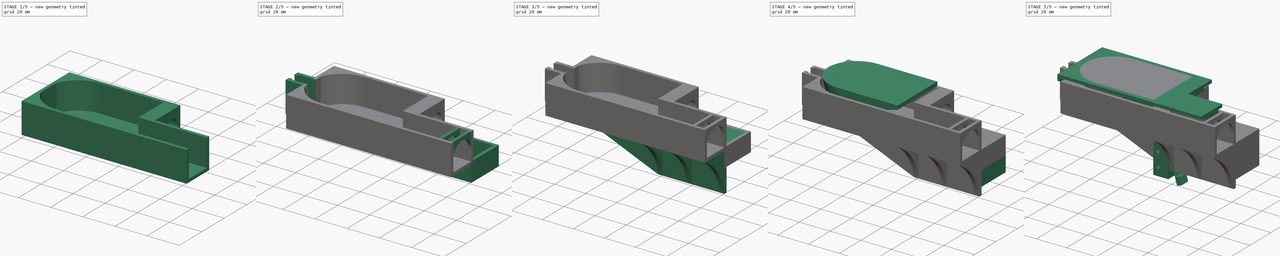
[diagram: build sequence overview — one tinted view per stage of 5, left to right]
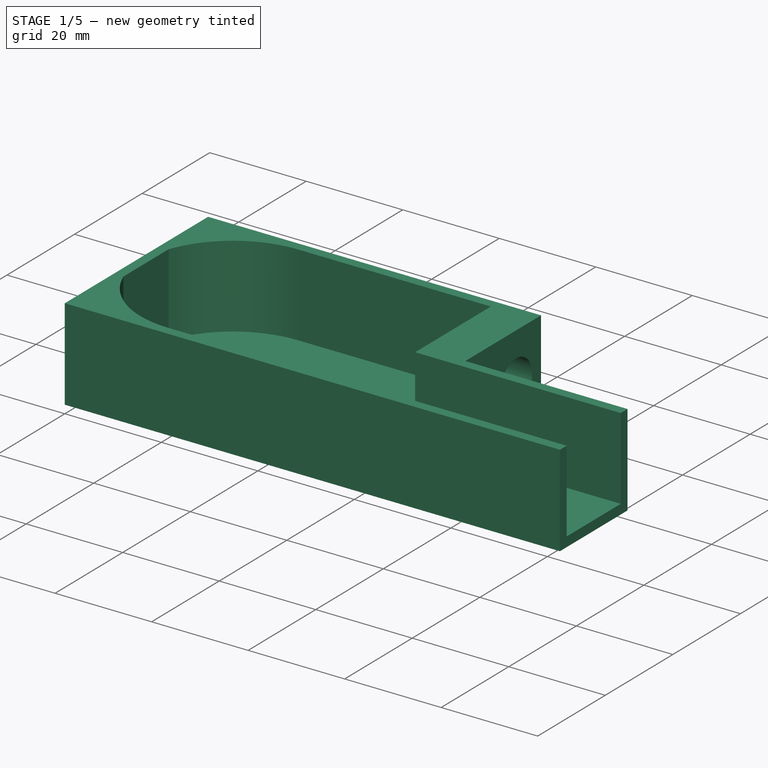
[diagram: stage 1 of 5 — iso view after this stage's code; geometry added in this stage tinted green]
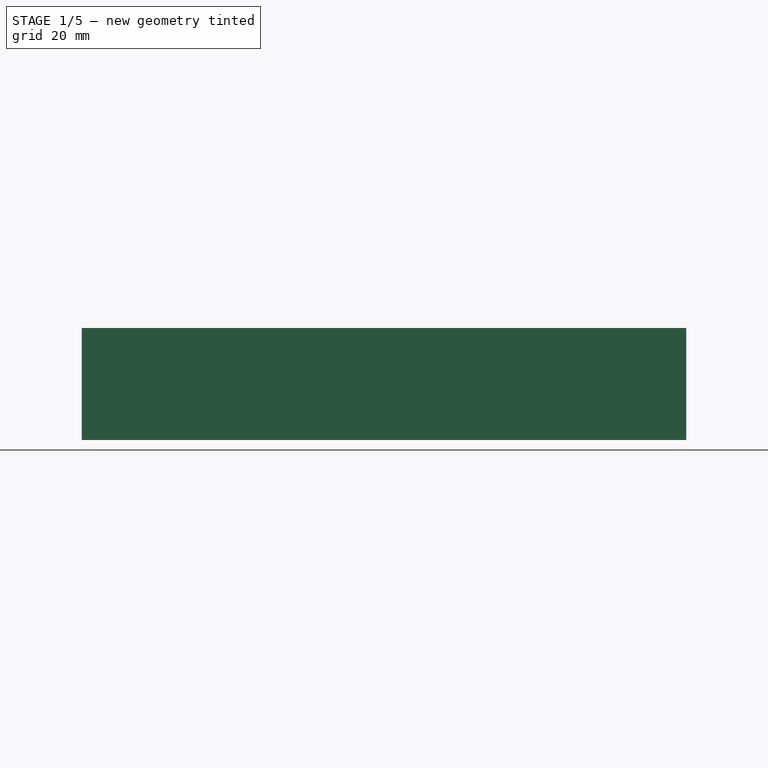
[diagram: stage 1 of 5 — front view after this stage's code; geometry added in this stage tinted green]
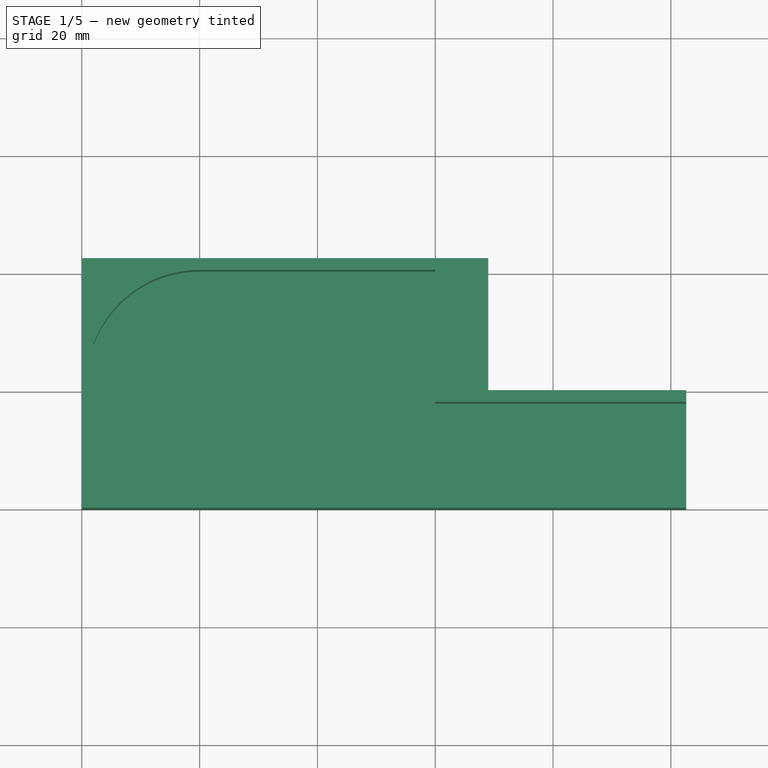
[diagram: stage 1 of 5 — top view after this stage's code; geometry added in this stage tinted green]
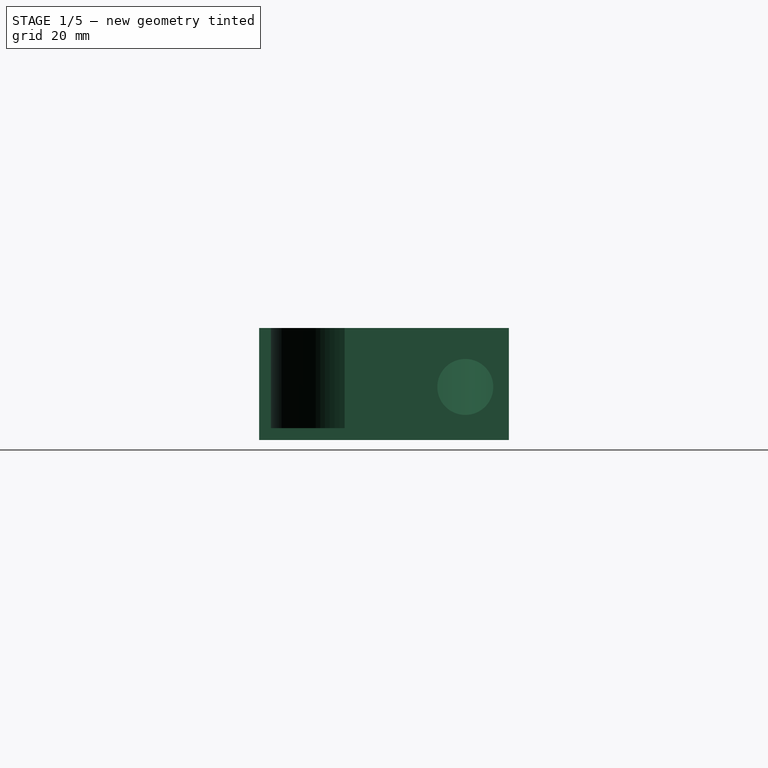
[diagram: stage 1 of 5 — right view after this stage's code; geometry added in this stage tinted green]
FCSTD DOCUMENT  (FreeCAD 1.0R39109 (Git))
Label: CapGuide
License: All rights reserved
LicenseURL: https://en.wikipedia.org/wiki/All_rights_reserved
objects: Sketcher::SketchObject×24, PartDesign::Pad×21, PartDesign::Body×6, PartDesign::Pocket×3, PartDesign::Boolean×2, PartDesign::AdditiveBox×1
note: 133 computed .brp shape members not serialized (recipe doc carries the construction recipe); baked Part::Feature solids carry a one-line shape summary decoded from their .brp

FEATURE [Sketcher::SketchObject] Sketch030
  ArcFitTolerance = 0
  AttachmentOffset = pos=(0,0,12) rot=(0,0,1;0rad)
  AttachmentSupport = -> [XY_Plane004]
  FullyConstrained = true
  MakeInternals = false
  MapMode = 5
  Placement = pos=(0,0,12) rot=(0,0,1;0rad)
  sketch-geometry (6):
    g0: LineSegment StartX=-60 StartY=22.4 StartZ=0 EndX=0 EndY=22.4 EndZ=0
    g1: LineSegment StartX=42.6 StartY=0 StartZ=0 EndX=42.6 EndY=-20 EndZ=0
    g2: LineSegment StartX=42.6 StartY=-20 StartZ=0 EndX=-60 EndY=-20 EndZ=0
    g3: LineSegment StartX=-60 StartY=-20 StartZ=0 EndX=-60 EndY=22.4 EndZ=0
    g4: LineSegment StartX=0 StartY=22.4 StartZ=0 EndX=0 EndY=0 EndZ=0
    g5: LineSegment StartX=0 StartY=0 StartZ=0 EndX=42.6 EndY=0 EndZ=0
  constraints (18):
    c: Coincident(g1,g2)
    c: Coincident(g3,g0)
    c: Horizontal(g0)
    c: Horizontal(g2)
    c: Vertical(g1)
    c: Vertical(g3)
    c: Coincident(g2,g3)
    c: DistanceY(g0) = 22.4
    c: DistanceX(g2) = -60
    c: DistanceY(g2) = -20
    c: DistanceX(g-1,g1) = 42.6
    c: DistanceX(g0,g-1) = 0
    c: Coincident(g0,g4)
    c: Coincident(g4,g5)
    c: Coincident(g5,g1)
    c: Horizontal(g5)
    c: Vertical(g4)
    c: DistanceY(g1,g-1) = 0
FEATURE [PartDesign::Pad] Pad029
  Direction = (0,0,1)
  Length = 2
  Length2 = 10
  Profile = -> Sketch030
  ReferenceAxis = -> Sketch030 [N_Axis]
  Reversed = true
  Suppressed = false
  Type = 0
FEATURE [PartDesign::Pad] Pad024
  BaseFeature = -> Pad029
  Direction = (1,0,0)
  Length = 9
  Length2 = 10
  Profile = -> Sketch026
  ReferenceAxis = -> Sketch026 [N_Axis]
  Suppressed = false
  Type = 0
FEATURE [PartDesign::Pad] Pad025
  BaseFeature = -> Pad024
  Direction = (0,0,1)
  Length = 17
  Length2 = 10
  Profile = -> Sketch020
  ReferenceAxis = -> Sketch020 [N_Axis]
  Suppressed = false
  Type = 0
FEATURE [Sketcher::SketchObject] Sketch033
  ArcFitTolerance = 1e-06
  AttachmentOffset = pos=(35.6,0,29) rot=(0,0,1;0rad)
  AttachmentSupport = -> [XY_Plane004]
  FullyConstrained = true
  MakeInternals = false
  MapMode = 5
  Placement = pos=(35.6,0,29) rot=(0,0,1;0rad)
  sketch-geometry (4):
    g0: LineSegment StartX=7 StartY=0 StartZ=0 EndX=-35.6 EndY=0 EndZ=0
    g1: LineSegment StartX=7 StartY=-2 StartZ=0 EndX=-35.6 EndY=-2 EndZ=0
    g2: LineSegment StartX=-35.6 StartY=-2 StartZ=0 EndX=-35.6 EndY=0 EndZ=0
    g3: LineSegment StartX=7 StartY=0 StartZ=0 EndX=7 EndY=-2 EndZ=0
  constraints (12):
    c: Horizontal(g0)
    c: DistanceY(g0,g-1) = 0
    c: Horizontal(g1)
    c: Coincident(g1,g2)
    c: Coincident(g2,g0)
    c: Vertical(g2)
    c: DistanceX(g1,g0) = 42.6
    c: Coincident(g3,g0)
    c: Coincident(g3,g1)
    c: Vertical(g3)
    c: DistanceX(g1) = 7
    c: DistanceY(g1) = -2
FEATURE [PartDesign::Pad] Pad033
  BaseFeature = -> Pad025
  Direction = (0,0,1)
  Length = 17
  Length2 = 10
  Profile = -> Sketch033
  ReferenceAxis = -> Sketch033 [N_Axis]
  Reversed = true
  Suppressed = false
  Type = 0
FEATURE [Sketcher::SketchObject] Sketch034
  ArcFitTolerance = 1e-06
  AttachmentOffset = pos=(0,0,10) rot=(0,0,1;0rad)
  AttachmentSupport = -> [XY_Plane004]
  FullyConstrained = true
  MakeInternals = false
  MapMode = 5
  Placement = pos=(0,0,10) rot=(0,0,1;0rad)
  sketch-geometry (4):
    g0: ArcOfCircle CenterX=-40 CenterY=1.2 CenterZ=0 NormalX=0 NormalY=0 NormalZ=1 AngleXU=0 Radius=19.2 StartAngle=1.5708 EndAngle=4.71239
    g1: LineSegment StartX=-40 StartY=20.4 StartZ=0 EndX=-60 EndY=20.4 EndZ=0
    g2: LineSegment StartX=-60 StartY=20.4 StartZ=0 EndX=-60 EndY=-18 EndZ=0
    g3: LineSegment StartX=-60 StartY=-18 StartZ=0 EndX=-40 EndY=-18 EndZ=0
  constraints (11):
    c: Radius(g0) = 19.2
    c: DistanceX(g0,g-1) = 40
    c: Coincident(g1,g2)
    c: Coincident(g2,g3)
    c: Horizontal(g1)
    c: Horizontal(g3)
    c: Vertical(g2)
    c: Tangent(g1,g0) = -1.5708
    c: Tangent(g3,g0) = -1.5708
    c: DistanceX(g1,g0) = 20
    c: DistanceY(g-1,g0) = 1.2
FEATURE [PartDesign::Pad] Pad034
  BaseFeature = -> Pad033
  Direction = (0,0,1)
  Length = 19
  Length2 = 10
  Profile = -> Sketch034
  ReferenceAxis = -> Sketch034 [N_Axis]
  Suppressed = false
  Type = 0
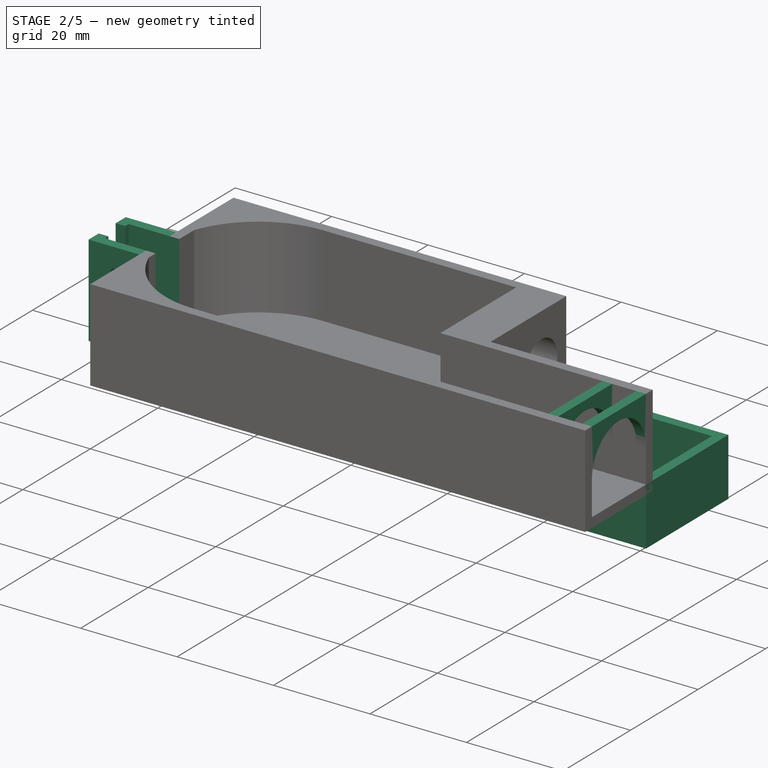
[diagram: stage 2 of 5 — iso view after this stage's code; geometry added in this stage tinted green]
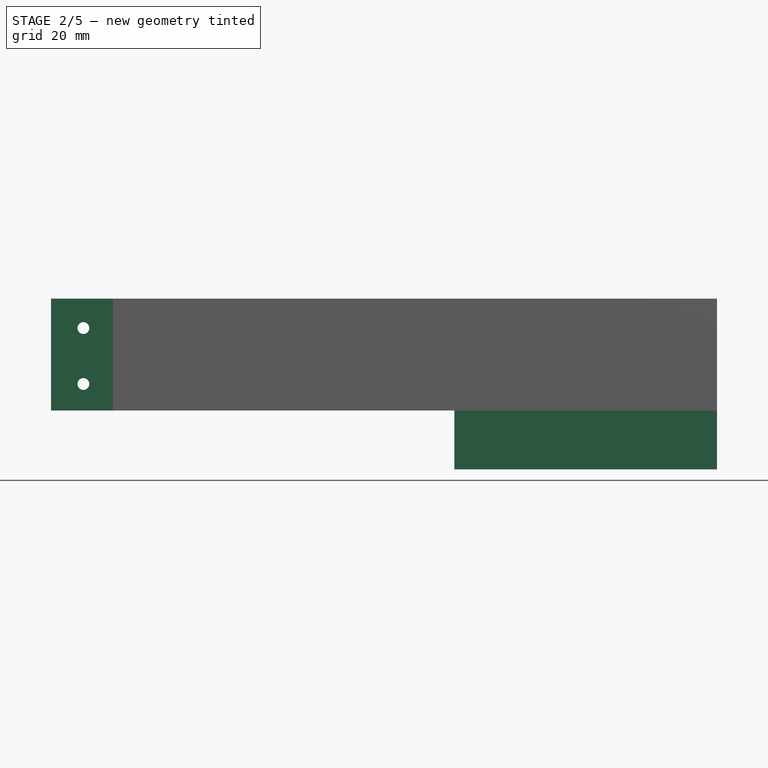
[diagram: stage 2 of 5 — front view after this stage's code; geometry added in this stage tinted green]
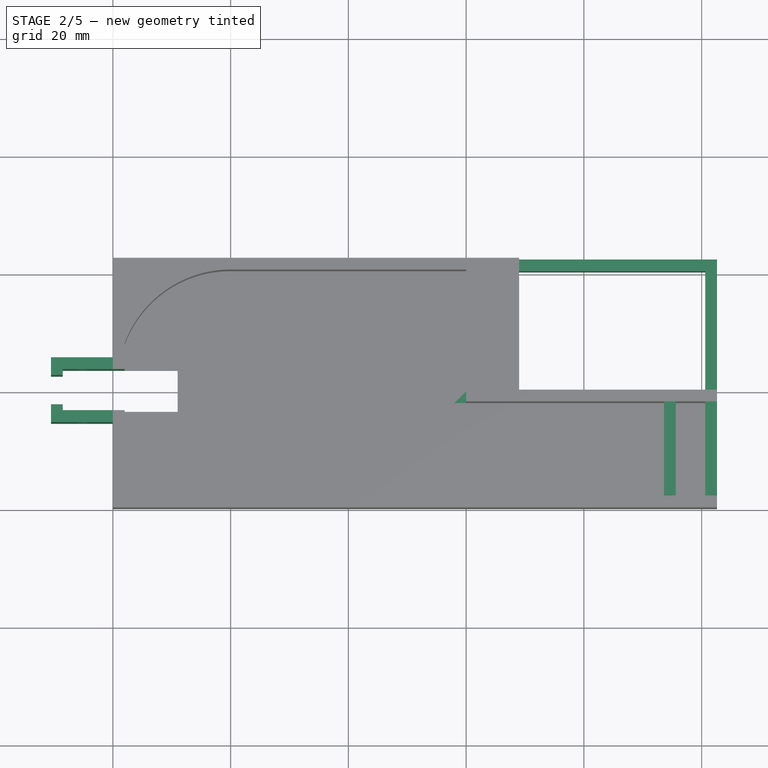
[diagram: stage 2 of 5 — top view after this stage's code; geometry added in this stage tinted green]
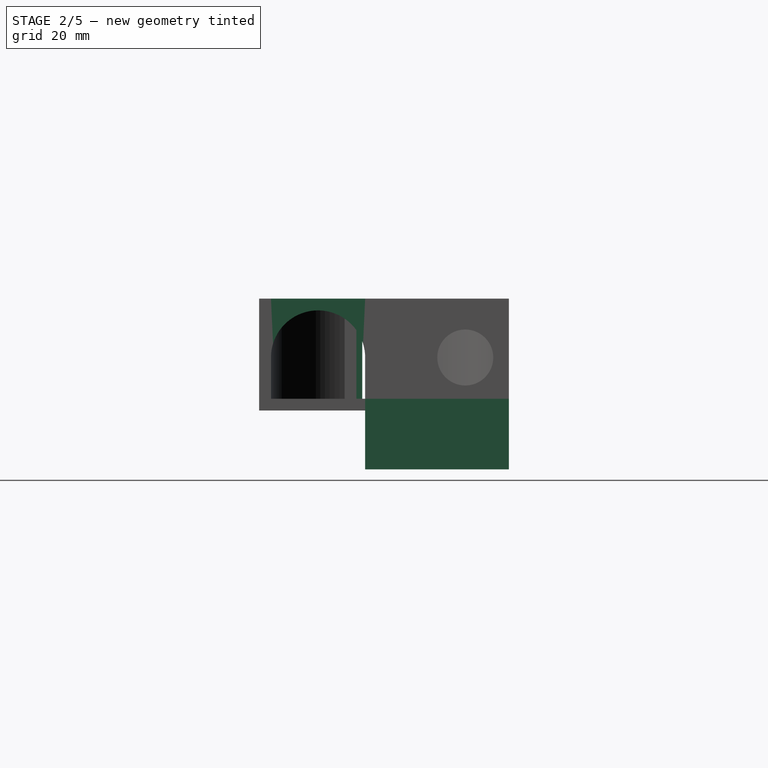
[diagram: stage 2 of 5 — right view after this stage's code; geometry added in this stage tinted green]
FEATURE [Sketcher::SketchObject] Sketch014
  ArcFitTolerance = 0
  AttachmentSupport = -> [XY_Plane003]
  FullyConstrained = true
  MakeInternals = false
  MapMode = 5
  sketch-geometry (8):
    g0: LineSegment StartX=0 StartY=20.4 StartZ=0 EndX=40.6 EndY=20.4 EndZ=0
    g1: LineSegment StartX=40.6 StartY=20.4 StartZ=0 EndX=40.6 EndY=0 EndZ=0
    g2: LineSegment StartX=40.6 StartY=0 StartZ=0 EndX=0 EndY=0 EndZ=0
    g3: LineSegment StartX=0 StartY=0 StartZ=0 EndX=0 EndY=20.4 EndZ=0
    g4: LineSegment StartX=-2 StartY=22.4 StartZ=0 EndX=42.6 EndY=22.4 EndZ=0
    g5: LineSegment StartX=42.6 StartY=22.4 StartZ=0 EndX=42.6 EndY=-2 EndZ=0
    g6: LineSegment StartX=42.6 StartY=-2 StartZ=0 EndX=-2 EndY=-2 EndZ=0
    g7: LineSegment StartX=-2 StartY=-2 StartZ=0 EndX=-2 EndY=22.4 EndZ=0
  constraints (24):
    c: Coincident(g0,g1)
    c: Coincident(g1,g2)
    c: Coincident(g2,g3)
    c: Coincident(g3,g0)
    c: Horizontal(g0)
    c: Horizontal(g2)
    c: Vertical(g1)
    c: Vertical(g3)
    c: Coincident(g4,g5)
    c: Coincident(g5,g6)
    c: Coincident(g7,g4)
    c: Horizontal(g4)
    c: Horizontal(g6)
    c: Vertical(g5)
    c: Vertical(g7)
    c: DistanceX(g2) = 0
    c: DistanceY(g2) = 0
    c: DistanceY(g3,g3) = 20.4
    c: DistanceX(g0,g0) = 40.6
    c: DistanceX(g0,g4) = 2
    c: DistanceX(g4,g0) = 2
    c: DistanceY(g0,g4) = 2
    c: DistanceY(g5,g1) = 2
    c: Coincident(g6,g7)
FEATURE [PartDesign::Pad] Pad013
  Direction = (0,0,1)
  Length = 12
  Length2 = 10
  Profile = -> Sketch014
  ReferenceAxis = -> Sketch014 [N_Axis]
  Suppressed = false
  Type = 0
FEATURE [PartDesign::Body] Body005  label="Switch"
  AllowCompound = false
  Group = -> [Sketch036,Pad035,Sketch037,Pad036]
  Origin = -> Origin005
  Placement = pos=(-58,0,31) rot=(0,0,1;0rad)
  Tip = -> Pad036
FEATURE [Sketcher::SketchObject] Sketch038
  ArcFitTolerance = 1e-06
  AttachmentOffset = pos=(0,0,30) rot=(0,0,1;0rad)
  AttachmentSupport = -> [XY_Plane004]
  FullyConstrained = true
  MakeInternals = false
  MapMode = 5
  Placement = pos=(0,0,30) rot=(0,0,1;0rad)
  sketch-geometry (6):
    g0: LineSegment StartX=-60 StartY=3.5 StartZ=0 EndX=-60 EndY=-3.5 EndZ=0
    g1: LineSegment StartX=-60 StartY=-3.5 StartZ=0 EndX=-49 EndY=-3.5 EndZ=0
    g2: LineSegment StartX=-49 StartY=-3.5 StartZ=0 EndX=-49 EndY=3.5 EndZ=0
    g3: LineSegment StartX=-49 StartY=3.5 StartZ=0 EndX=-60 EndY=3.5 EndZ=0
    g4: LineSegment [constr] StartX=-60 StartY=3.5 StartZ=0 EndX=0 EndY=0 EndZ=0
    g5: LineSegment [constr] StartX=0 StartY=0 StartZ=0 EndX=-60 EndY=-3.5 EndZ=0
  constraints (16):
    c: Coincident(g0,g1)
    c: Coincident(g1,g2)
    c: Coincident(g2,g3)
    c: Coincident(g3,g0)
    c: Vertical(g0)
    c: Vertical(g2)
    c: Horizontal(g1)
    c: Horizontal(g3)
    c: DistanceY(g0,g0) = 7
    c: Coincident(g4,g0)
    c: Coincident(g4,g-1)
    c: Coincident(g5,g4)
    c: Coincident(g5,g0)
    c: Equal(g4,g5)
    c: DistanceX(g0,g4) = 60
    c: DistanceX(g1,g4) = 49
FEATURE [PartDesign::Pocket] Pocket
  BaseFeature = -> Pad034
  Direction = (0,0,-1)
  Length = 20
  Length2 = 5
  Profile = -> Sketch038
  ReferenceAxis = -> Sketch038 [N_Axis]
  Suppressed = false
  Type = 0
FEATURE [Sketcher::SketchObject] Sketch039
  ArcFitTolerance = 1e-06
  AttachmentOffset = pos=(0,0,29) rot=(0,0,1;0rad)
  AttachmentSupport = -> [XY_Plane004]
  FullyConstrained = true
  MakeInternals = false
  MapMode = 5
  Placement = pos=(0,0,29) rot=(0,0,1;0rad)
  sketch-geometry (12):
    g0: LineSegment StartX=-70.5 StartY=-5.5 StartZ=0 EndX=-58 EndY=-5.5 EndZ=0
    g1: LineSegment StartX=-58 StartY=5.5 StartZ=0 EndX=-70.5 EndY=5.5 EndZ=0
    g2: LineSegment StartX=-68.5 StartY=-3.5 StartZ=0 EndX=-58 EndY=-3.5 EndZ=0
    g3: LineSegment StartX=-58 StartY=3.5 StartZ=0 EndX=-68.5 EndY=3.5 EndZ=0
    g4: LineSegment StartX=-58 StartY=5.5 StartZ=0 EndX=-58 EndY=3.5 EndZ=0
    g5: LineSegment StartX=-58 StartY=-3.5 StartZ=0 EndX=-58 EndY=-5.5 EndZ=0
    g6: LineSegment StartX=-70.5 StartY=5.5 StartZ=0 EndX=-70.5 EndY=2.5 EndZ=0
    g7: LineSegment StartX=-70.5 StartY=-2.5 StartZ=0 EndX=-70.5 EndY=-5.5 EndZ=0
    g8: LineSegment StartX=-70.5 StartY=2.5 StartZ=0 EndX=-68.5 EndY=2.5 EndZ=0
    g9: LineSegment StartX=-68.5 StartY=2.5 StartZ=0 EndX=-68.5 EndY=3.5 EndZ=0
    g10: LineSegment StartX=-70.5 StartY=-2.5 StartZ=0 EndX=-68.5 EndY=-2.5 EndZ=0
    g11: LineSegment StartX=-68.5 StartY=-2.5 StartZ=0 EndX=-68.5 EndY=-3.5 EndZ=0
  constraints (36):
    c: Horizontal(g0)
    c: Horizontal(g1)
    c: Horizontal(g2)
    c: Horizontal(g3)
    c: Coincident(g4,g1)
    c: Coincident(g4,g3)
    c: Coincident(g5,g2)
    c: Coincident(g5,g0)
    c: Vertical(g4)
    c: Vertical(g5)
    c: DistanceX(g2,g3) = 0
    c: Equal(g4,g5)
    c: DistanceX(g3) = -58
    c: DistanceY(g3) = 3.5
    c: DistanceY(g4,g4) = 2
    c: DistanceY(g2,g3) = 7
    c: Coincident(g6,g1)
    c: Vertical(g6)
    c: Coincident(g7,g0)
    c: Vertical(g7)
    c: DistanceX(g1,g1) = 12.5
    c: DistanceX(g0,g1) = 0
    c: Coincident(g6,g8)
    c: Horizontal(g8)
    c: Coincident(g8,g9)
    c: Coincident(g9,g3)
    c: Coincident(g7,g10)
    c: Horizontal(g10)
    c: Coincident(g10,g11)
    c: Coincident(g11,g2)
    c: Vertical(g11)
    c: Vertical(g9)
    c: DistanceY(g9,g9) = 1
    c: DistanceY(g11,g11) = 1
    c: DistanceX(g8,g8) = 2
    c: DistanceX(g10,g10) = 2
FEATURE [PartDesign::Pad] Pad037
  BaseFeature = -> Pocket
  Direction = (0,0,1)
  Length = 19
  Length2 = 10
  Profile = -> Sketch039
  ReferenceAxis = -> Sketch039 [N_Axis]
  Reversed = true
  Suppressed = false
  Type = 0
FEATURE [Sketcher::SketchObject] Sketch040
  ArcFitTolerance = 1e-06
  AttachmentSupport = -> [XZ_Plane004]
  FullyConstrained = true
  MakeInternals = false
  MapMode = 5
  Placement = pos=(0,0,0) rot=(1,0,0;1.5708rad)
  sketch-geometry (2):
    g0: Circle CenterX=-65 CenterY=24 CenterZ=0 NormalX=0 NormalY=0 NormalZ=1 AngleXU=0 Radius=1
    g1: Circle CenterX=-65 CenterY=14.5 CenterZ=0 NormalX=0 NormalY=0 NormalZ=1 AngleXU=0 Radius=1
  constraints (6):
    c: DistanceX(g0,g1) = 0
    c: Equal(g0,g1)
    c: Radius(g0) = 1
    c: DistanceY(g1,g0) = 9.5
    c: DistanceX(g0) = -65
    c: DistanceY(g0) = 24
FEATURE [PartDesign::Pocket] Pocket001
  BaseFeature = -> Pad037
  Direction = (0,1,-2e-16)
  Length = 5
  Length2 = 5
  Midplane = true
  Profile = -> Sketch040
  ReferenceAxis = -> Sketch040 [N_Axis]
  Suppressed = false
  Type = 1
FEATURE [PartDesign::Body] Body003  label="Cap"
  AllowCompound = false
  Group = -> [Pad013,Sketch014,Sketch015,Pad014,Sketch017,Pad,Sketch019,Pad018,Sketch028,Pad027,Sketch029,Pad028,Sketch032,Pad032,Sketch042,Pocket002,Sketch043,Pad039]
  Origin = -> Origin003
  Tip = -> Pad039
FEATURE [Sketcher::SketchObject] Sketch044
  ArcFitTolerance = 1e-06
  AttachmentOffset = pos=(0,0,42.6) rot=(0,0,1;0rad)
  AttachmentSupport = -> [YZ_Plane004]
  FullyConstrained = true
  MakeInternals = false
  MapMode = 5
  Placement = pos=(42.6,0,0) rot=(0.57735,0.57735,0.57735;2.0944rad)
  sketch-geometry (8):
    g0: ArcOfCircle CenterX=-10 CenterY=19 CenterZ=0 NormalX=0 NormalY=0 NormalZ=1 AngleXU=0 Radius=8 StartAngle=-2.9736e-12 EndAngle=3.14159
    g1: LineSegment StartX=-18 StartY=19 StartZ=0 EndX=-18 EndY=12 EndZ=0
    g2: LineSegment StartX=-18 StartY=12 StartZ=0 EndX=-2 EndY=12 EndZ=0
    g3: LineSegment StartX=-2 StartY=12 StartZ=0 EndX=-2 EndY=19 EndZ=0
    g4: LineSegment StartX=-20 StartY=10 StartZ=0 EndX=6.9136e-12 EndY=10 EndZ=0
    g5: LineSegment StartX=6.9136e-12 StartY=10 StartZ=0 EndX=6.9136e-12 EndY=29 EndZ=0
    g6: LineSegment StartX=6.9136e-12 StartY=29 StartZ=0 EndX=-20 EndY=29 EndZ=0
    g7: LineSegment StartX=-20 StartY=29 StartZ=0 EndX=-20 EndY=10 EndZ=0
  constraints (23):
    c: Coincident(g1,g2)
    c: Coincident(g2,g3)
    c: Vertical(g1)
    c: Vertical(g3)
    c: Horizontal(g2)
    c: DistanceY(g2) = 12
    c: Tangent(g1,g0) = -1.5708
    c: Tangent(g0,g3) = -1.5708
    c: Radius(g0) = 8
    c: DistanceX(g1,g-1) = 18
    c: DistanceY(g2,g0) = 7
    c: Coincident(g4,g5)
    c: Coincident(g5,g6)
    c: Coincident(g6,g7)
    c: Coincident(g7,g4)
    c: Horizontal(g4)
    c: Horizontal(g6)
    c: Vertical(g5)
    c: Vertical(g7)
    c: DistanceX(g4,g1) = 2
    c: DistanceX(g2,g4) = 2
    c: DistanceY(g4,g1) = 2
    c: DistanceY(g4,g6) = 19
FEATURE [PartDesign::Pad] Pad040
  BaseFeature = -> Pocket001
  Direction = (1,0,0)
  Length = 2
  Length2 = 10
  Profile = -> Sketch044
  ReferenceAxis = -> Sketch044 [N_Axis]
  Reversed = true
  Suppressed = false
  Type = 0
FEATURE [Sketcher::SketchObject] Sketch045
  ArcFitTolerance = 1e-06
  AttachmentOffset = pos=(0,0,33.6) rot=(0,0,1;0rad)
  AttachmentSupport = -> [YZ_Plane004]
  FullyConstrained = true
  MakeInternals = false
  MapMode = 5
  Placement = pos=(33.6,0,0) rot=(0.57735,0.57735,0.57735;2.0944rad)
  sketch-geometry (8):
    g0: ArcOfCircle CenterX=-10 CenterY=19 CenterZ=0 NormalX=0 NormalY=0 NormalZ=1 AngleXU=0 Radius=8 StartAngle=0 EndAngle=3.14159
    g1: LineSegment StartX=-18 StartY=19 StartZ=0 EndX=-18 EndY=12 EndZ=0
    g2: LineSegment StartX=-18 StartY=12 StartZ=0 EndX=-2 EndY=12 EndZ=0
    g3: LineSegment StartX=-2 StartY=12 StartZ=0 EndX=-2 EndY=19 EndZ=0
    g4: LineSegment StartX=-20 StartY=10 StartZ=0 EndX=0 EndY=10 EndZ=0
    g5: LineSegment StartX=0 StartY=10 StartZ=0 EndX=0 EndY=29 EndZ=0
    g6: LineSegment StartX=0 StartY=29 StartZ=0 EndX=-20 EndY=29 EndZ=0
    g7: LineSegment StartX=-20 StartY=29 StartZ=0 EndX=-20 EndY=10 EndZ=0
  constraints (23):
    c: Coincident(g1,g2)
    c: Coincident(g2,g3)
    c: Vertical(g1)
    c: Vertical(g3)
    c: Horizontal(g2)
    c: DistanceY(g2) = 12
    c: Tangent(g1,g0) = -1.5708
    c: Tangent(g0,g3) = -1.5708
    c: Radius(g0) = 8
    c: DistanceX(g1,g-1) = 18
    c: DistanceY(g2,g0) = 7
    c: Coincident(g4,g5)
    c: Coincident(g5,g6)
    c: Coincident(g6,g7)
    c: Coincident(g7,g4)
    c: Horizontal(g4)
    c: Horizontal(g6)
    c: Vertical(g5)
    c: Vertical(g7)
    c: DistanceX(g4,g1) = 2
    c: DistanceX(g2,g4) = 2
    c: DistanceY(g4,g1) = 2
    c: DistanceY(g4,g6) = 19
FEATURE [PartDesign::Pad] Pad041
  BaseFeature = -> Pad040
  Direction = (1,0,0)
  Length = 2
  Length2 = 10
  Profile = -> Sketch045
  ReferenceAxis = -> Sketch045 [N_Axis]
  Suppressed = false
  Type = 0
FEATURE [PartDesign::Body] Body004  label="Guide"
  AllowCompound = false
  Group = -> [Pad029,Sketch026,Pad024,Sketch020,Pad025,Sketch030,Sketch033,Pad033,Sketch034,Pad034,Sketch038,Pocket,Sketch039,Pad037,Sketch040,Pocket001,Sketch044,Pad040,Sketch045,Pad041]
  Origin = -> Origin004
  Placement = pos=(0,0,2) rot=(0,0,1;0rad)
  Tip = -> Pad041
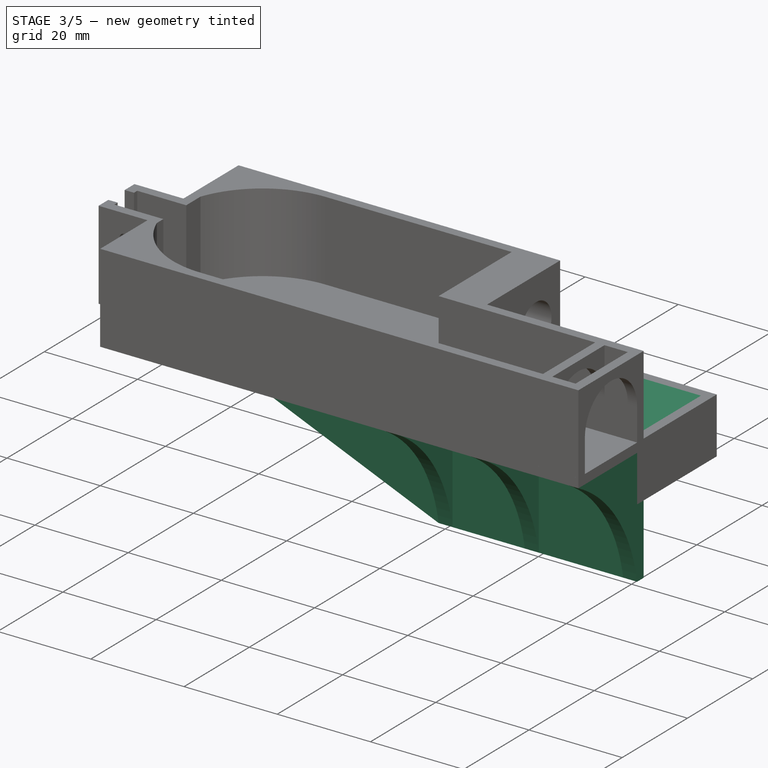
[diagram: stage 3 of 5 — iso view after this stage's code; geometry added in this stage tinted green]
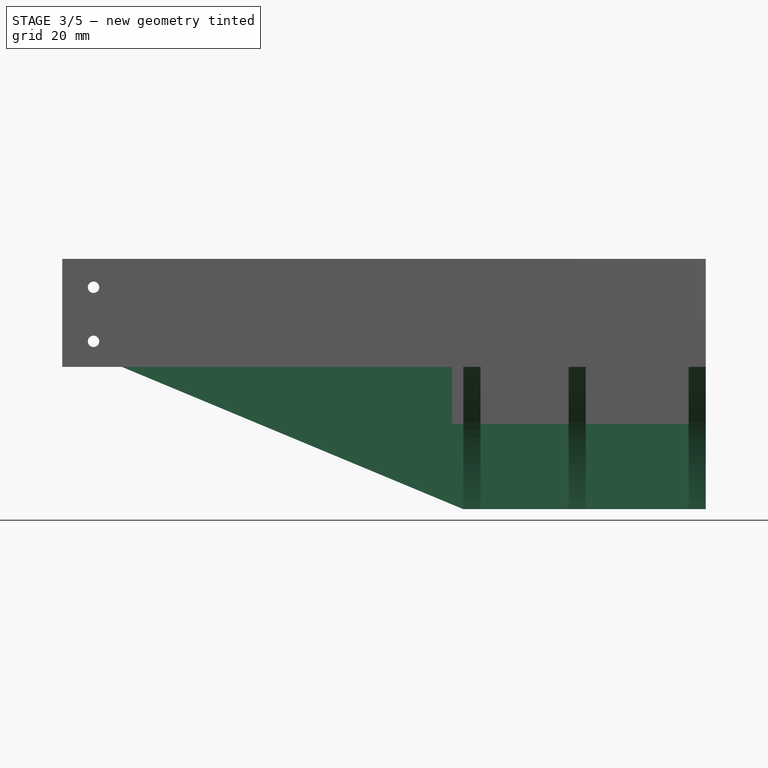
[diagram: stage 3 of 5 — front view after this stage's code; geometry added in this stage tinted green]
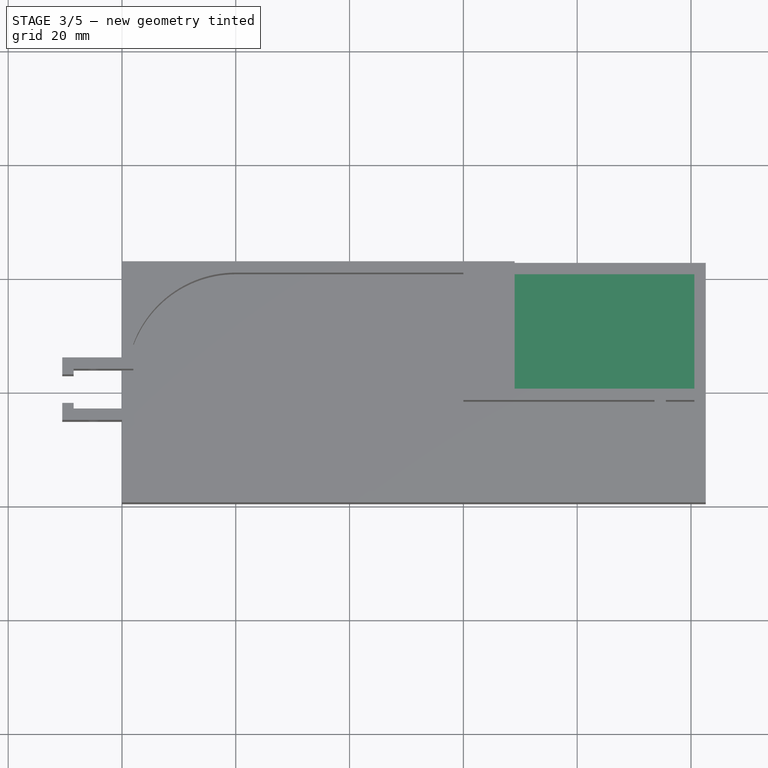
[diagram: stage 3 of 5 — top view after this stage's code; geometry added in this stage tinted green]
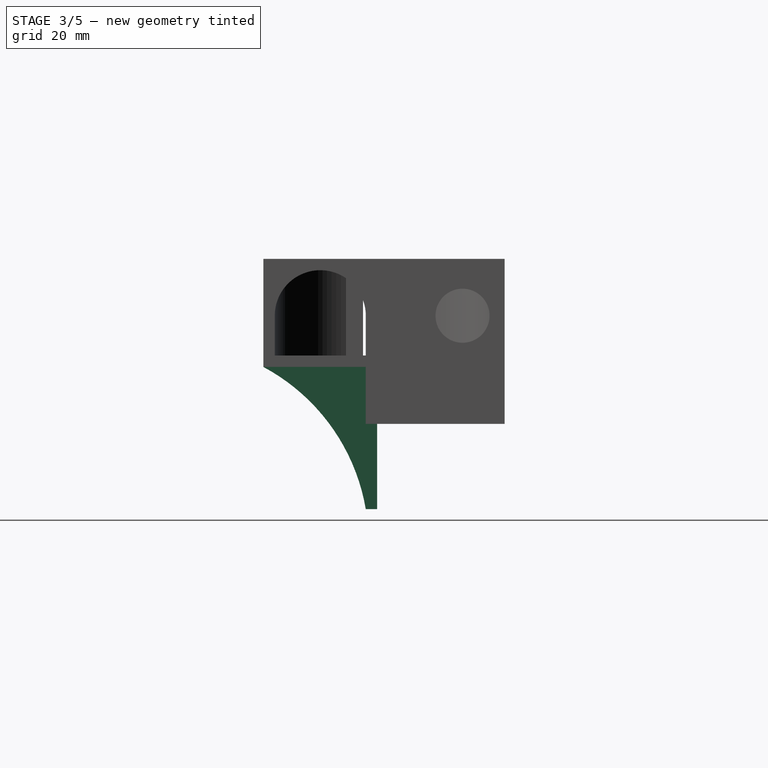
[diagram: stage 3 of 5 — right view after this stage's code; geometry added in this stage tinted green]
FEATURE [Sketcher::SketchObject] Sketch015
  ArcFitTolerance = 1e-06
  AttachmentSupport = -> [XZ_Plane003]
  FullyConstrained = true
  MakeInternals = false
  MapMode = 5
  Placement = pos=(0,0,0) rot=(1,0,0;1.5708rad)
  sketch-geometry (4):
    g0: LineSegment StartX=-60 StartY=10 StartZ=0 EndX=0 EndY=-15 EndZ=0
    g1: LineSegment StartX=0 StartY=-15 StartZ=0 EndX=42.6 EndY=-15 EndZ=0
    g2: LineSegment StartX=42.6 StartY=10 StartZ=0 EndX=-60 EndY=10 EndZ=0
    g3: LineSegment StartX=42.6 StartY=-15 StartZ=0 EndX=42.6 EndY=10 EndZ=0
  constraints (12):
    c: Coincident(g0,g1)
    c: Coincident(g2,g0)
    c: Horizontal(g1)
    c: Horizontal(g2)
    c: DistanceX(g0) = -60
    c: DistanceY(g0) = 10
    c: DistanceX(g-1,g2) = 42.6
    c: DistanceY(g0,g-1) = 15
    c: Coincident(g2,g3)
    c: Vertical(g3)
    c: Coincident(g3,g1)
    c: DistanceX(g0,g-1) = 0
FEATURE [PartDesign::Pad] Pad014
  BaseFeature = -> Pad013
  Direction = (0,-1,2e-16)
  Length = 2
  Length2 = 10
  Profile = -> Sketch015
  ReferenceAxis = -> Sketch015 [N_Axis]
  Suppressed = false
  Type = 0
FEATURE [Sketcher::SketchObject] Sketch017
  ArcFitTolerance = 0
  AttachmentOffset = pos=(0,0,12) rot=(0,0,1;0rad)
  AttachmentSupport = -> [XY_Plane003]
  FullyConstrained = true
  MakeInternals = false
  MapMode = 5
  Placement = pos=(0,0,12) rot=(0,0,1;0rad)
  sketch-geometry (4):
    g0: LineSegment StartX=-60 StartY=22.4 StartZ=0 EndX=42.6 EndY=22.4 EndZ=0
    g1: LineSegment StartX=42.6 StartY=22.4 StartZ=0 EndX=42.6 EndY=-20 EndZ=0
    g2: LineSegment StartX=42.6 StartY=-20 StartZ=0 EndX=-60 EndY=-20 EndZ=0
    g3: LineSegment StartX=-60 StartY=-20 StartZ=0 EndX=-60 EndY=22.4 EndZ=0
  constraints (12):
    c: Coincident(g0,g1)
    c: Coincident(g1,g2)
    c: Coincident(g3,g0)
    c: Horizontal(g0)
    c: Horizontal(g2)
    c: Vertical(g1)
    c: Vertical(g3)
    c: Coincident(g2,g3)
    c: DistanceX(g0) = 42.6
    c: DistanceY(g0) = 22.4
    c: DistanceX(g2) = -60
    c: DistanceY(g2) = -20
FEATURE [PartDesign::Pad] Pad
  BaseFeature = -> Pad014
  Direction = (0,0,1)
  Length = 2
  Length2 = 10
  Profile = -> Sketch017
  ReferenceAxis = -> Sketch017 [N_Axis]
  Reversed = true
  Suppressed = false
  Type = 0
FEATURE [Sketcher::SketchObject] Sketch019
  ArcFitTolerance = 1e-06
  AttachmentOffset = pos=(0,0,42.6) rot=(0,0,1;0rad)
  AttachmentSupport = -> [YZ_Plane003]
  FullyConstrained = true
  MakeInternals = false
  MapMode = 5
  Placement = pos=(42.6,0,0) rot=(0.57735,0.57735,0.57735;2.0944rad)
  sketch-geometry (3):
    g0: LineSegment StartX=-2 StartY=10 StartZ=0 EndX=-20 EndY=10 EndZ=0
    g1: LineSegment StartX=-2 StartY=-15 StartZ=0 EndX=-2 EndY=10 EndZ=0
    g2: ArcOfCircle CenterX=-36.5053 CenterY=-20.8638 CenterZ=0 NormalX=0 NormalY=0 NormalZ=1 AngleXU=0 Radius=35 StartAngle=0.168331 EndAngle=1.07971
  constraints (10):
    c: Horizontal(g0)
    c: Coincident(g1,g0)
    c: Vertical(g1)
    c: DistanceX(g0) = -20
    c: DistanceY(g0) = 10
    c: DistanceX(g1) = -2
    c: DistanceY(g1) = -15
    c: Coincident(g2,g1)
    c: Coincident(g2,g0)
    c: Radius(g2) = 35
FEATURE [PartDesign::Pad] Pad018
  BaseFeature = -> Pad
  Direction = (1,0,0)
  Length = 3
  Length2 = 10
  Profile = -> Sketch019
  ReferenceAxis = -> Sketch019 [N_Axis]
  Reversed = true
  Suppressed = false
  Type = 0
FEATURE [Sketcher::SketchObject] Sketch020
  ArcFitTolerance = 1e-06
  AttachmentOffset = pos=(0,0,12) rot=(0,0,1;0rad)
  AttachmentSupport = -> [XY_Plane004]
  FullyConstrained = true
  MakeInternals = false
  MapMode = 5
  Placement = pos=(0,0,12) rot=(0,0,1;0rad)
  sketch-geometry (8):
    g0: LineSegment StartX=0 StartY=22.4 StartZ=0 EndX=-60 EndY=22.4 EndZ=0
    g1: LineSegment StartX=-60 StartY=22.4 StartZ=0 EndX=-60 EndY=-20 EndZ=0
    g2: LineSegment StartX=-60 StartY=-20 StartZ=0 EndX=42.6 EndY=-20 EndZ=0
    g3: LineSegment StartX=0 StartY=20.4 StartZ=0 EndX=-58 EndY=20.4 EndZ=0
    g4: LineSegment StartX=-58 StartY=20.4 StartZ=0 EndX=-58 EndY=-18 EndZ=0
    g5: LineSegment StartX=-58 StartY=-18 StartZ=0 EndX=42.6 EndY=-18 EndZ=0
    g6: LineSegment StartX=0 StartY=22.4 StartZ=0 EndX=0 EndY=20.4 EndZ=0
    g7: LineSegment StartX=42.6 StartY=-18 StartZ=0 EndX=42.6 EndY=-20 EndZ=0
  constraints (24):
    c: Coincident(g0,g1)
    c: Coincident(g1,g2)
    c: Horizontal(g0)
    c: Horizontal(g2)
    c: Vertical(g1)
    c: Coincident(g3,g4)
    c: Coincident(g4,g5)
    c: Horizontal(g3)
    c: Horizontal(g5)
    c: Vertical(g4)
    c: DistanceY(g0) = 22.4
    c: DistanceX(g1) = -60
    c: DistanceY(g1) = -20
    c: DistanceX(g1,g4) = 2
    c: DistanceY(g3,g0) = 2
    c: DistanceY(g1,g4) = 2
    c: Coincident(g6,g0)
    c: Coincident(g6,g3)
    c: Vertical(g6)
    c: Coincident(g7,g5)
    c: Coincident(g7,g2)
    c: Vertical(g7)
    c: DistanceX(g-1,g5) = 42.6
    c: DistanceX(g3,g-1) = 0
FEATURE [Sketcher::SketchObject] Sketch026
  ArcFitTolerance = 1e-06
  AttachmentSupport = -> [YZ_Plane004]
  FullyConstrained = true
  MakeInternals = false
  MapMode = 5
  Placement = pos=(0,0,0) rot=(0.57735,0.57735,0.57735;2.0944rad)
  sketch-geometry (5):
    g0: LineSegment StartX=22.4 StartY=29 StartZ=0 EndX=-2 EndY=29 EndZ=0
    g1: LineSegment StartX=-2 StartY=29 StartZ=0 EndX=-2 EndY=10 EndZ=0
    g2: LineSegment StartX=-2 StartY=10 StartZ=0 EndX=22.4 EndY=10 EndZ=0
    g3: LineSegment StartX=22.4 StartY=10 StartZ=0 EndX=22.4 EndY=29 EndZ=0
    g4: Circle CenterX=15 CenterY=19 CenterZ=0 NormalX=0 NormalY=0 NormalZ=1 AngleXU=0 Radius=4.75
  constraints (15):
    c: Coincident(g0,g1)
    c: Coincident(g1,g2)
    c: Coincident(g2,g3)
    c: Coincident(g3,g0)
    c: Horizontal(g0)
    c: Horizontal(g2)
    c: Vertical(g1)
    c: Vertical(g3)
    c: DistanceX(g0) = 22.4
    c: DistanceY(g0) = 29
    c: DistanceX(g1) = -2
    c: DistanceY(g1) = 10
    c: Diameter(g4) = 9.5
    c: DistanceX(g4) = 15
    c: DistanceY(g4) = 19
FEATURE [Sketcher::SketchObject] Sketch028
  ArcFitTolerance = 1e-06
  AttachmentOffset = pos=(0,0,20) rot=(0,0,1;0rad)
  AttachmentSupport = -> [YZ_Plane003]
  FullyConstrained = true
  MakeInternals = false
  MapMode = 5
  Placement = pos=(20,0,0) rot=(0.57735,0.57735,0.57735;2.0944rad)
  sketch-geometry (3):
    g0: LineSegment StartX=-2 StartY=10 StartZ=0 EndX=-20 EndY=10 EndZ=0
    g1: LineSegment StartX=-2 StartY=-15 StartZ=0 EndX=-2 EndY=10 EndZ=0
    g2: ArcOfCircle CenterX=-36.5053 CenterY=-20.8638 CenterZ=0 NormalX=0 NormalY=0 NormalZ=1 AngleXU=0 Radius=35 StartAngle=0.168331 EndAngle=1.07971
  constraints (10):
    c: Horizontal(g0)
    c: Coincident(g1,g0)
    c: Vertical(g1)
    c: DistanceX(g0) = -20
    c: DistanceY(g0) = 10
    c: DistanceX(g1) = -2
    c: DistanceY(g1) = -15
    c: Coincident(g2,g1)
    c: Coincident(g2,g0)
    c: Radius(g2) = 35
FEATURE [PartDesign::Pad] Pad027
  BaseFeature = -> Pad018
  Direction = (1,0,0)
  Length = 3
  Length2 = 10
  Midplane = true
  Profile = -> Sketch028
  ReferenceAxis = -> Sketch028 [N_Axis]
  Suppressed = false
  Type = 0
FEATURE [Sketcher::SketchObject] Sketch029
  ArcFitTolerance = 1e-06
  AttachmentSupport = -> [YZ_Plane003]
  FullyConstrained = true
  MakeInternals = false
  MapMode = 5
  Placement = pos=(0,0,0) rot=(0.57735,0.57735,0.57735;2.0944rad)
  sketch-geometry (3):
    g0: LineSegment StartX=-2 StartY=10 StartZ=0 EndX=-20 EndY=10 EndZ=0
    g1: LineSegment StartX=-2 StartY=-15 StartZ=0 EndX=-2 EndY=10 EndZ=0
    g2: ArcOfCircle CenterX=-36.5053 CenterY=-20.8638 CenterZ=0 NormalX=0 NormalY=0 NormalZ=1 AngleXU=0 Radius=35 StartAngle=0.168331 EndAngle=1.07971
  constraints (10):
    c: Horizontal(g0)
    c: Coincident(g1,g0)
    c: Vertical(g1)
    c: DistanceX(g0) = -20
    c: DistanceY(g0) = 10
    c: DistanceX(g1) = -2
    c: DistanceY(g1) = -15
    c: Coincident(g2,g1)
    c: Coincident(g2,g0)
    c: Radius(g2) = 35
FEATURE [PartDesign::Pad] Pad028
  BaseFeature = -> Pad027
  Direction = (1,0,0)
  Length = 3
  Length2 = 10
  Profile = -> Sketch029
  ReferenceAxis = -> Sketch029 [N_Axis]
  Suppressed = false
  Type = 0
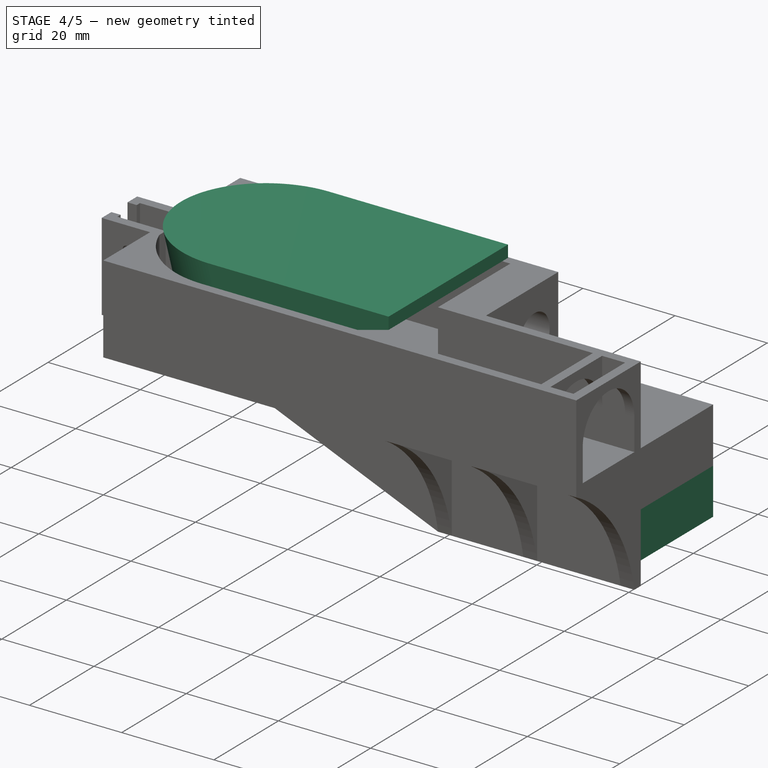
[diagram: stage 4 of 5 — iso view after this stage's code; geometry added in this stage tinted green]
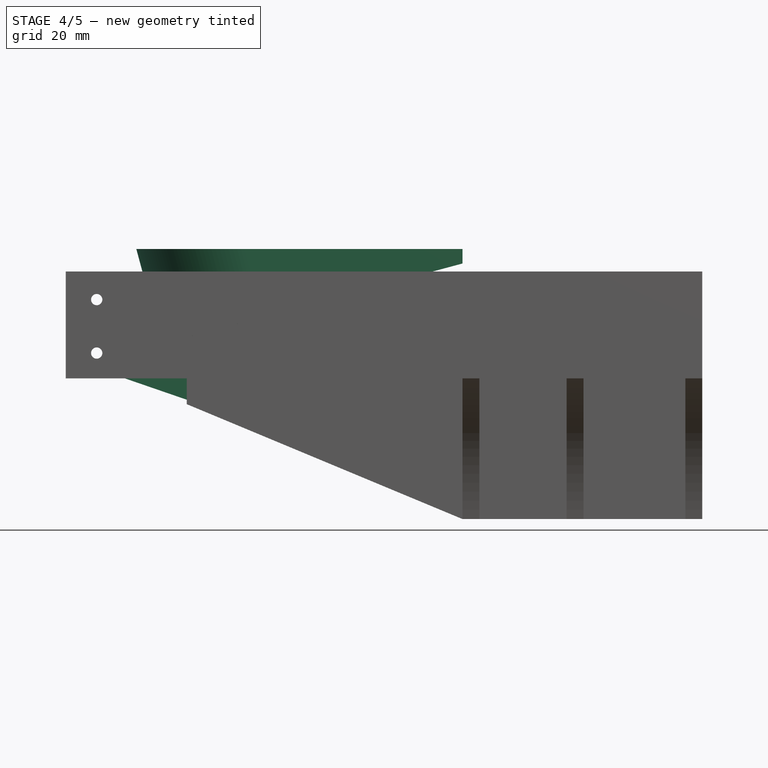
[diagram: stage 4 of 5 — front view after this stage's code; geometry added in this stage tinted green]
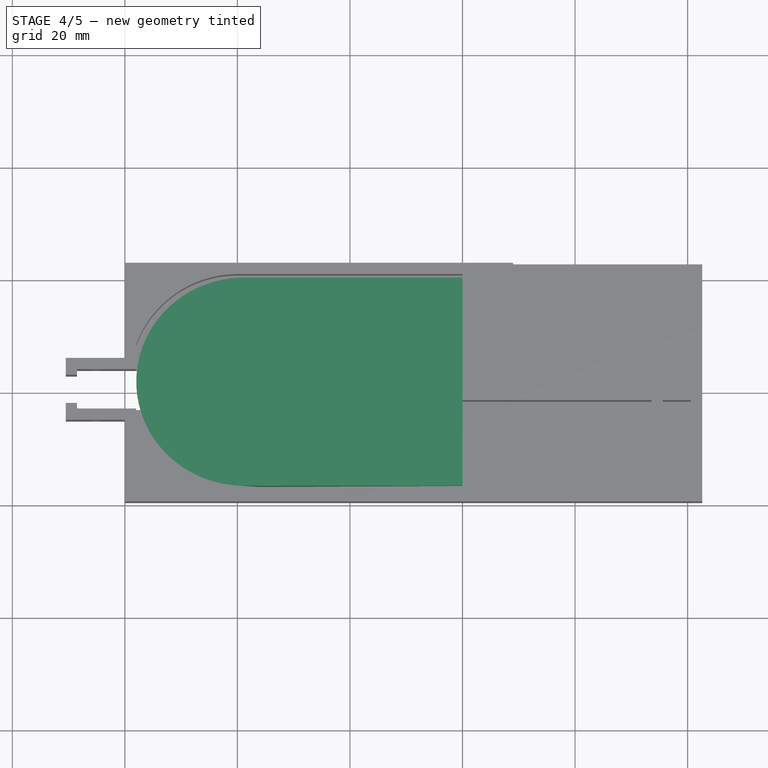
[diagram: stage 4 of 5 — top view after this stage's code; geometry added in this stage tinted green]
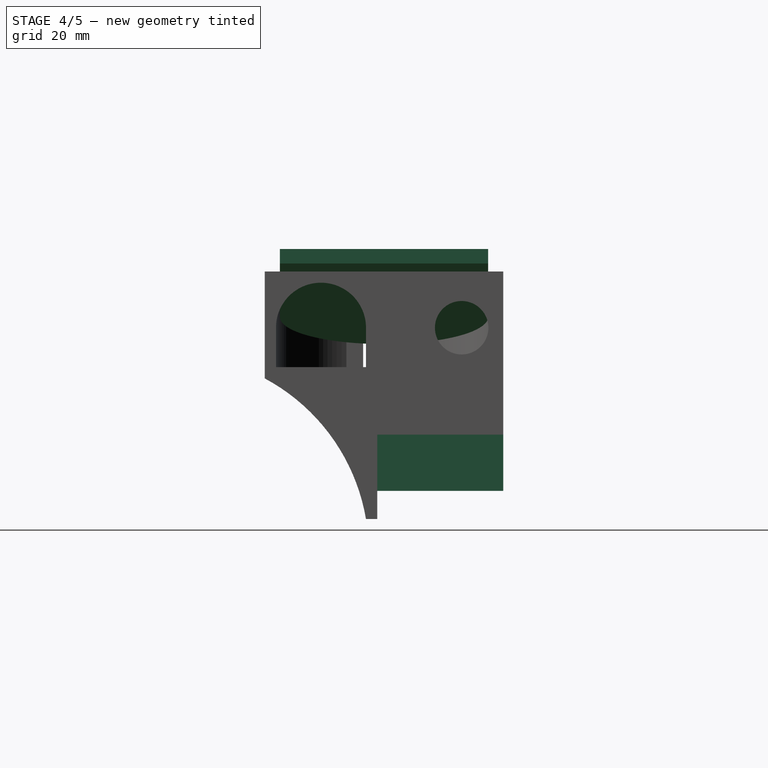
[diagram: stage 4 of 5 — right view after this stage's code; geometry added in this stage tinted green]
FEATURE [PartDesign::Body] Body  label="Cover"
  AllowCompound = false
  Group = -> [Sketch,Pad030,Sketch031,Pad031]
  Origin = -> Origin
  Placement = pos=(0,0,31) rot=(0,0,1;0rad)
  Tip = -> Pad031
FEATURE [Sketcher::SketchObject] Sketch032
  ArcFitTolerance = 0
  AttachmentSupport = -> [XY_Plane003]
  FullyConstrained = true
  MakeInternals = false
  MapMode = 5
  sketch-geometry (8):
    g0: LineSegment StartX=40.6 StartY=22.4 StartZ=0 EndX=40.6 EndY=0 EndZ=0
    g1: LineSegment StartX=40.6 StartY=0 StartZ=0 EndX=0 EndY=0 EndZ=0
    g2: LineSegment StartX=0 StartY=0 StartZ=0 EndX=0 EndY=22.4 EndZ=0
    g3: LineSegment StartX=42.6 StartY=22.4 StartZ=0 EndX=42.6 EndY=-2 EndZ=0
    g4: LineSegment StartX=42.6 StartY=-2 StartZ=0 EndX=-2 EndY=-2 EndZ=0
    g5: LineSegment StartX=-2 StartY=-2 StartZ=0 EndX=-2 EndY=22.4 EndZ=0
    g6: LineSegment StartX=-2 StartY=22.4 StartZ=0 EndX=0 EndY=22.4 EndZ=0
    g7: LineSegment StartX=40.6 StartY=22.4 StartZ=0 EndX=42.6 EndY=22.4 EndZ=0
  constraints (24):
    c: Coincident(g0,g1)
    c: Coincident(g1,g2)
    c: Horizontal(g1)
    c: Vertical(g0)
    c: Vertical(g2)
    c: Coincident(g3,g4)
    c: Horizontal(g4)
    c: Vertical(g3)
    c: Vertical(g5)
    c: DistanceX(g1) = 0
    c: DistanceY(g1) = 0
    c: DistanceX(g2,g0) = 40.6
    c: DistanceX(g0,g3) = 2
    c: DistanceX(g5,g2) = 2
    c: DistanceY(g3,g0) = 2
    c: Coincident(g4,g5)
    c: Coincident(g6,g5)
    c: Coincident(g6,g2)
    c: Coincident(g7,g0)
    c: Coincident(g7,g3)
    c: Horizontal(g6)
    c: Horizontal(g7)
    c: DistanceY(g2,g0) = 0
    c: DistanceY(g1,g2) = 22.4
FEATURE [PartDesign::Pad] Pad032
  BaseFeature = -> Pad028
  Direction = (0,0,1)
  Length = 10
  Length2 = 10
  Profile = -> Sketch032
  ReferenceAxis = -> Sketch032 [N_Axis]
  Reversed = true
  Suppressed = false
  Type = 0
FEATURE [Sketcher::SketchObject] Sketch041
  ArcFitTolerance = 1e-06
  AttachmentOffset = pos=(0,0,0) rot=(0,1,0;-0.261799rad)
  AttachmentSupport = -> [XY_Plane006]
  FullyConstrained = true
  MakeInternals = false
  MapMode = 5
  Placement = pos=(0,0,0) rot=(0,1,0;6.02139rad)
  sketch-geometry (4):
    g0: ArcOfCircle CenterX=-27.5 CenterY=1.2 CenterZ=0 NormalX=0 NormalY=0 NormalZ=1 AngleXU=0 Radius=18.5 StartAngle=1.5708 EndAngle=4.71239
    g1: LineSegment StartX=-27.5 StartY=-17.3 StartZ=0 EndX=12 EndY=-17.3 EndZ=0
    g2: LineSegment StartX=12 StartY=-17.3 StartZ=0 EndX=12 EndY=19.7 EndZ=0
    g3: LineSegment StartX=12 StartY=19.7 StartZ=0 EndX=-27.5 EndY=19.7 EndZ=0
  constraints (11):
    c: Coincident(g1,g2)
    c: Coincident(g2,g3)
    c: Vertical(g2)
    c: Horizontal(g1)
    c: Horizontal(g3)
    c: Radius(g0) = 18.5
    c: Tangent(g0,g3) = -1.5708
    c: Tangent(g1,g0) = -1.5708
    c: DistanceX(g2,g-1) = -12
    c: DistanceX(g0) = -27.5
    c: DistanceY(g0) = 1.2
FEATURE [PartDesign::Pad] Pad038
  Direction = (-0.258819,0,0.965926)
  Length = 18
  Length2 = 10
  Profile = -> Sketch041
  ReferenceAxis = -> Sketch041 [N_Axis]
  Suppressed = false
  Type = 0
FEATURE [PartDesign::Body] Body006  label="Cover2"
  AllowCompound = false
  Group = -> [Pad038,Sketch041]
  Origin = -> Origin006
  Placement = pos=(-9,0,28) rot=(0,0,1;0rad)
  Tip = -> Pad038
FEATURE [PartDesign::AdditiveBox] Box
  AttacherType = Attacher::AttachEngine3D
  AttachmentOffset = pos=(-58,-19,16) rot=(0,0,1;0rad)
  AttachmentSupport = -> [XY_Plane007]
  Height = 17
  Length = 58
  MapMode = 5
  Placement = pos=(-58,-19,16) rot=(0,0,1;0rad)
  Suppressed = false
  Width = 40
FEATURE [PartDesign::Boolean] Boolean
  BaseFeature = -> Box
  Group = -> [Body006]
  Suppressed = false
  Type = 2
  UsePlacement = true
FEATURE [PartDesign::Body] Body007  label="Cover3"
  AllowCompound = false
  Group = -> [Box,Boolean,Boolean001]
  Origin = -> Origin007
  Tip = -> Boolean001
FEATURE [Sketcher::SketchObject] Sketch042
  ArcFitTolerance = 1e-06
  AttachmentOffset = pos=(0,0,12) rot=(0,0,1;0rad)
  AttachmentSupport = -> [XY_Plane003]
  FullyConstrained = true
  MakeInternals = false
  MapMode = 5
  Placement = pos=(0,0,12) rot=(0,0,1;0rad)
  sketch-geometry (4):
    g0: LineSegment StartX=-60 StartY=3.5 StartZ=0 EndX=-60 EndY=-3.5 EndZ=0
    g1: LineSegment StartX=-60 StartY=-3.5 StartZ=0 EndX=-49 EndY=-3.5 EndZ=0
    g2: LineSegment StartX=-49 StartY=-3.5 StartZ=0 EndX=-49 EndY=3.5 EndZ=0
    g3: LineSegment StartX=-49 StartY=3.5 StartZ=0 EndX=-60 EndY=3.5 EndZ=0
  constraints (12):
    c: Coincident(g0,g1)
    c: Coincident(g1,g2)
    c: Coincident(g2,g3)
    c: Coincident(g3,g0)
    c: Vertical(g0)
    c: Vertical(g2)
    c: Horizontal(g1)
    c: Horizontal(g3)
    c: DistanceX(g0) = -60
    c: DistanceY(g0) = 3.5
    c: DistanceY(g0,g0) = 7
    c: DistanceX(g1,g1) = 11
FEATURE [PartDesign::Pocket] Pocket002
  BaseFeature = -> Pad032
  Direction = (0,0,-1)
  Length = 10
  Length2 = 5
  Profile = -> Sketch042
  ReferenceAxis = -> Sketch042 [N_Axis]
  Suppressed = false
  Type = 0
FEATURE [Sketcher::SketchObject] Sketch043
  ArcFitTolerance = 1e-06
  AttachmentOffset = pos=(0,0,-22.4) rot=(0,0,1;0rad)
  AttachmentSupport = -> [XZ_Plane003]
  FullyConstrained = true
  MakeInternals = false
  MapMode = 5
  Placement = pos=(0,22.4,-5e-15) rot=(1,0,0;1.5708rad)
  sketch-geometry (3):
    g0: LineSegment StartX=-2 StartY=-10 StartZ=0 EndX=-60 EndY=10 EndZ=0
    g1: LineSegment StartX=-60 StartY=10 StartZ=0 EndX=-2 EndY=10 EndZ=0
    g2: LineSegment StartX=-2 StartY=10 StartZ=0 EndX=-2 EndY=-10 EndZ=0
  constraints (9):
    c: Coincident(g0,g1)
    c: Horizontal(g1)
    c: Coincident(g1,g2)
    c: Coincident(g2,g0)
    c: Vertical(g2)
    c: DistanceX(g0) = -60
    c: DistanceY(g0) = 10
    c: DistanceX(g0) = -2
    c: DistanceY(g0) = -10
FEATURE [PartDesign::Pad] Pad039
  BaseFeature = -> Pocket002
  Direction = (0,-1,2e-16)
  Length = 2
  Length2 = 10
  Profile = -> Sketch043
  ReferenceAxis = -> Sketch043 [N_Axis]
  Suppressed = false
  Type = 0
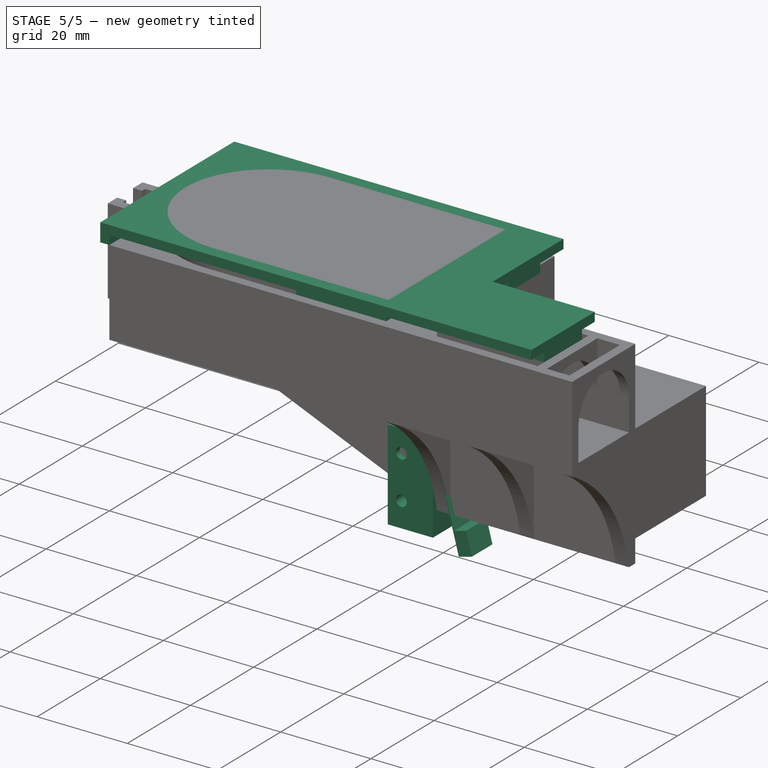
[diagram: stage 5 of 5 — iso view after this stage's code; geometry added in this stage tinted green]
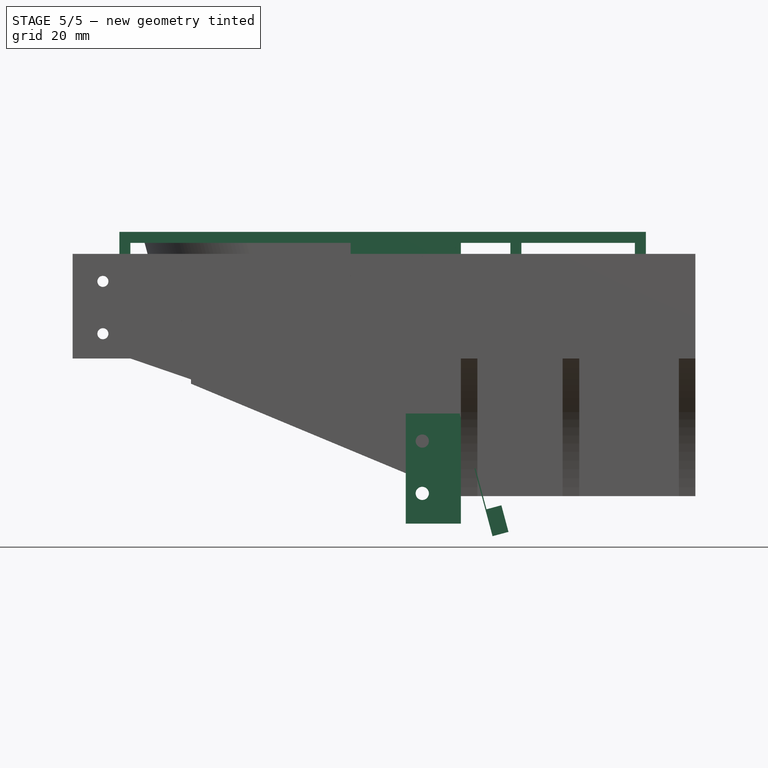
[diagram: stage 5 of 5 — front view after this stage's code; geometry added in this stage tinted green]
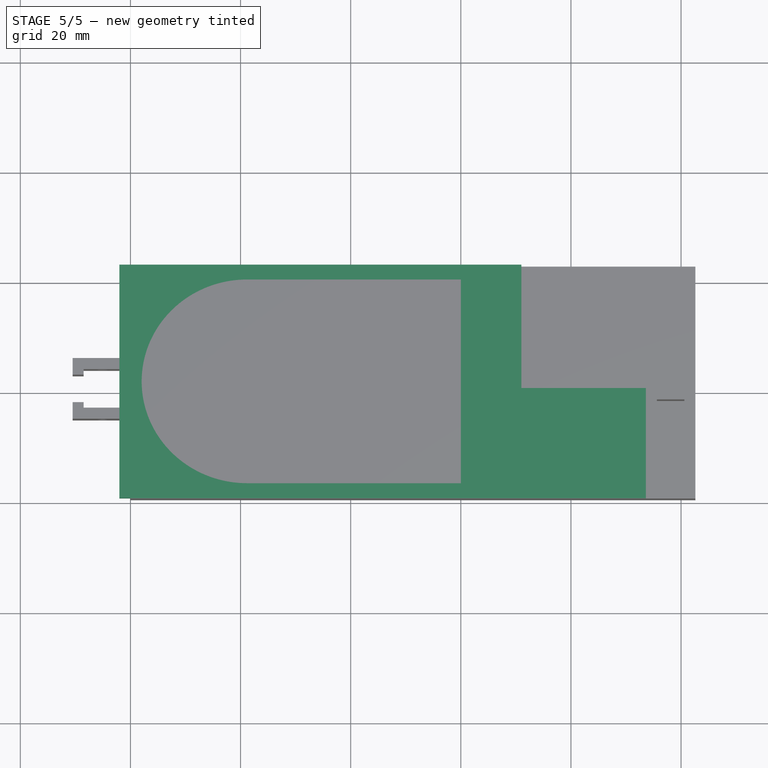
[diagram: stage 5 of 5 — top view after this stage's code; geometry added in this stage tinted green]
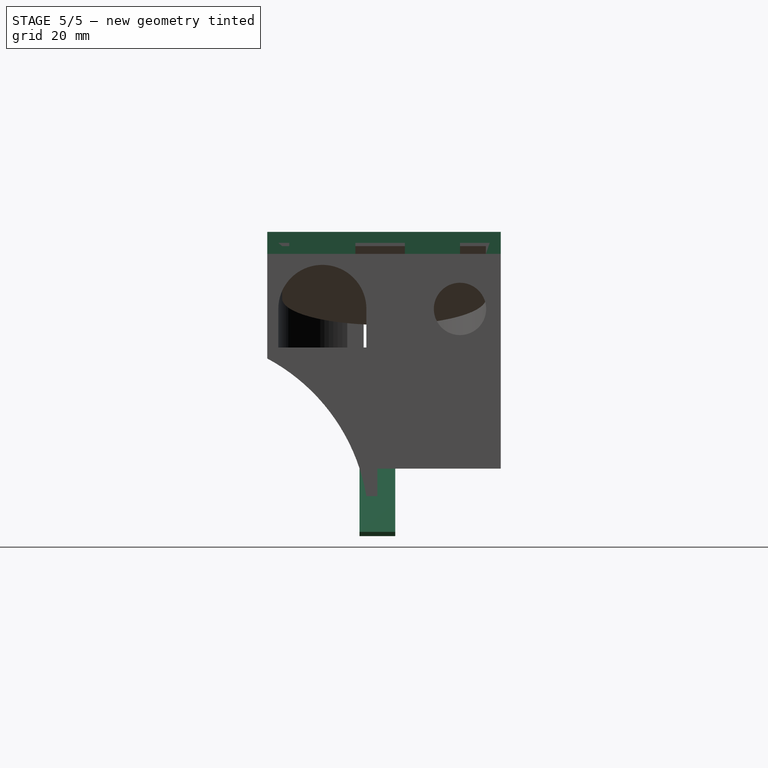
[diagram: stage 5 of 5 — right view after this stage's code; geometry added in this stage tinted green]
FEATURE [Sketcher::SketchObject] Sketch
  ArcFitTolerance = 1e-06
  AttachmentSupport = -> [XY_Plane]
  FullyConstrained = true
  MakeInternals = false
  MapMode = 5
  sketch-geometry (6):
    g0: LineSegment StartX=-62 StartY=22.4 StartZ=0 EndX=-62 EndY=-20 EndZ=0
    g1: LineSegment StartX=-62 StartY=-20 StartZ=0 EndX=33.6 EndY=-20 EndZ=0
    g2: LineSegment StartX=33.6 StartY=-20 StartZ=0 EndX=33.6 EndY=0 EndZ=0
    g3: LineSegment StartX=11 StartY=22.4 StartZ=0 EndX=-62 EndY=22.4 EndZ=0
    g4: LineSegment StartX=11 StartY=22.4 StartZ=0 EndX=11 EndY=0 EndZ=0
    g5: LineSegment StartX=11 StartY=0 StartZ=0 EndX=33.6 EndY=0 EndZ=0
  constraints (18):
    c: Coincident(g0,g1)
    c: Coincident(g1,g2)
    c: Coincident(g3,g0)
    c: Vertical(g0)
    c: Vertical(g2)
    c: Horizontal(g1)
    c: Horizontal(g3)
    c: DistanceX(g0) = -62
    c: DistanceY(g0) = -20
    c: DistanceY(g-1,g0) = 22.4
    c: DistanceX(g-1,g1) = 33.6
    c: Coincident(g3,g4)
    c: Coincident(g4,g5)
    c: Coincident(g5,g2)
    c: Vertical(g4)
    c: Horizontal(g5)
    c: DistanceX(g4) = 11
    c: DistanceY(g4) = 0
FEATURE [PartDesign::Pad] Pad030
  Direction = (0,0,1)
  Length = 2
  Length2 = 10
  Profile = -> Sketch
  ReferenceAxis = -> Sketch [N_Axis]
  Suppressed = false
  Type = 0
FEATURE [Sketcher::SketchObject] Sketch031
  ArcFitTolerance = 1e-06
  AttachmentSupport = -> [XY_Plane]
  FullyConstrained = true
  MakeInternals = false
  MapMode = 5
  sketch-geometry (24):
    g0: LineSegment StartX=-35 StartY=20.4 StartZ=0 EndX=-35 EndY=18.4 EndZ=0
    g1: LineSegment StartX=-35 StartY=18.4 StartZ=0 EndX=-15 EndY=18.4 EndZ=0
    g2: LineSegment StartX=-15 StartY=18.4 StartZ=0 EndX=-15 EndY=20.4 EndZ=0
    g3: LineSegment StartX=-15 StartY=20.4 StartZ=0 EndX=-35 EndY=20.4 EndZ=0
    g4: LineSegment StartX=0 StartY=-18 StartZ=0 EndX=0 EndY=-16 EndZ=0
    g5: LineSegment StartX=0 StartY=-16 StartZ=0 EndX=-20 EndY=-16 EndZ=0
    g6: LineSegment StartX=-20 StartY=-16 StartZ=0 EndX=-20 EndY=-18 EndZ=0
    g7: LineSegment StartX=-20 StartY=-18 StartZ=0 EndX=0 EndY=-18 EndZ=0
    g8: LineSegment StartX=33.6 StartY=-4 StartZ=0 EndX=31.6 EndY=-4 EndZ=0
    g9: LineSegment StartX=31.6 StartY=-4 StartZ=0 EndX=31.6 EndY=-16 EndZ=0
    g10: LineSegment StartX=31.6 StartY=-16 StartZ=0 EndX=33.6 EndY=-16 EndZ=0
    g11: LineSegment StartX=33.6 StartY=-16 StartZ=0 EndX=33.6 EndY=-4 EndZ=0
    g12: LineSegment StartX=-62 StartY=22.4 StartZ=0 EndX=-62 EndY=12.4 EndZ=0
    g13: LineSegment StartX=-62 StartY=12.4 StartZ=0 EndX=-60 EndY=12.4 EndZ=0
    g14: LineSegment StartX=-60 StartY=12.4 StartZ=0 EndX=-60 EndY=22.4 EndZ=0
    g15: LineSegment StartX=-60 StartY=22.4 StartZ=0 EndX=-62 EndY=22.4 EndZ=0
    g16: LineSegment StartX=-62 StartY=-20 StartZ=0 EndX=-60 EndY=-20 EndZ=0
    g17: LineSegment StartX=-60 StartY=-20 StartZ=0 EndX=-60 EndY=-10 EndZ=0
    g18: LineSegment StartX=-60 StartY=-10 StartZ=0 EndX=-62 EndY=-10 EndZ=0
    g19: LineSegment StartX=-62 StartY=-10 StartZ=0 EndX=-62 EndY=-20 EndZ=0
    g20: LineSegment StartX=11 StartY=15 StartZ=0 EndX=9 EndY=15 EndZ=0
    g21: LineSegment StartX=9 StartY=15 StartZ=0 EndX=9 EndY=5 EndZ=0
    g22: LineSegment StartX=9 StartY=5 StartZ=0 EndX=11 EndY=5 EndZ=0
    g23: LineSegment StartX=11 StartY=5 StartZ=0 EndX=11 EndY=15 EndZ=0
  constraints (72):
    c: Coincident(g0,g1)
    c: Coincident(g1,g2)
    c: Coincident(g2,g3)
    c: Coincident(g3,g0)
    c: Vertical(g0)
    c: Vertical(g2)
    c: Horizontal(g1)
    c: Horizontal(g3)
    c: Coincident(g4,g5)
    c: Coincident(g5,g6)
    c: Coincident(g6,g7)
    c: Coincident(g7,g4)
    c: Vertical(g4)
    c: Vertical(g6)
    c: Horizontal(g5)
    c: Horizontal(g7)
    c: DistanceY(g2) = 20.4
    c: DistanceX(g5,g5) = 20
    c: DistanceY(g0,g0) = 2
    c: DistanceY(g6,g6) = 2
    c: DistanceY(g4,g-1) = 18
    c: Coincident(g8,g9)
    c: Coincident(g9,g10)
    c: Coincident(g10,g11)
    c: Coincident(g11,g8)
    c: Horizontal(g8)
    c: Horizontal(g10)
    c: Vertical(g9)
    c: Vertical(g11)
    c: DistanceX(g10) = 33.6
    c: DistanceY(g8,g-1) = 4
    c: DistanceY(g9,g9) = 12
    c: DistanceX(g8,g8) = 2
    c: DistanceX(g4,g-1) = 0
    c: DistanceX(g1,g1) = 20
    c: DistanceX(g1,g-1) = 15
    c: Coincident(g12,g13)
    c: Coincident(g13,g14)
    c: Coincident(g14,g15)
    c: Coincident(g15,g12)
    c: Vertical(g12)
    c: Vertical(g14)
    c: Horizontal(g13)
    c: Horizontal(g15)
    c: Coincident(g16,g17)
    c: Coincident(g17,g18)
    c: Coincident(g18,g19)
    c: Coincident(g19,g16)
    c: Horizontal(g16)
    c: Horizontal(g18)
    c: Vertical(g17)
    c: Vertical(g19)
    c: DistanceY(g12) = 22.4
    c: DistanceX(g14,g-1) = 60
    c: DistanceX(g15,g15) = 2
    c: DistanceX(g13,g17) = 0
    c: DistanceX(g18,g12) = 0
    c: DistanceY(g12,g12) = 10
    c: DistanceY(g19,g19) = 10
    c: DistanceY(g16,g-1) = 20
    c: Coincident(g20,g21)
    c: Coincident(g21,g22)
    c: Coincident(g22,g23)
    c: Coincident(g23,g20)
    c: Horizontal(g20)
    c: Horizontal(g22)
    c: Vertical(g21)
    c: Vertical(g23)
    c: DistanceX(g21,g-1) = -9
    c: DistanceX(g20,g20) = 2
    c: DistanceY(g21,g21) = 10
    c: DistanceY(g-1,g22) = 5
FEATURE [PartDesign::Pad] Pad031
  BaseFeature = -> Pad030
  Direction = (0,0,1)
  Length = 2
  Length2 = 10
  Profile = -> Sketch031
  ReferenceAxis = -> Sketch031 [N_Axis]
  Reversed = true
  Suppressed = false
  Type = 0
FEATURE [Sketcher::SketchObject] Sketch036
  ArcFitTolerance = 1e-06
  AttachmentSupport = -> [XZ_Plane005]
  FullyConstrained = true
  MakeInternals = false
  MapMode = 5
  Placement = pos=(0,0,0) rot=(1,0,0;1.5708rad)
  sketch-geometry (6):
    g0: LineSegment StartX=-10 StartY=0 StartZ=0 EndX=-10 EndY=-20 EndZ=0
    g1: LineSegment StartX=-10 StartY=-20 StartZ=0 EndX=0 EndY=-20 EndZ=0
    g2: LineSegment StartX=0 StartY=-20 StartZ=0 EndX=0 EndY=0 EndZ=0
    g3: LineSegment StartX=0 StartY=0 StartZ=0 EndX=-10 EndY=0 EndZ=0
    g4: Circle CenterX=-7 CenterY=-5 CenterZ=0 NormalX=0 NormalY=0 NormalZ=1 AngleXU=0 Radius=1.2
    g5: Circle CenterX=-7 CenterY=-14.5 CenterZ=0 NormalX=0 NormalY=0 NormalZ=1 AngleXU=0 Radius=1.2
  constraints (18):
    c: Coincident(g0,g1)
    c: Coincident(g1,g2)
    c: Coincident(g3,g0)
    c: Vertical(g0)
    c: Vertical(g2)
    c: Horizontal(g1)
    c: Horizontal(g3)
    c: DistanceX(g3,g3) = 10
    c: DistanceY(g0,g0) = 20
    c: DistanceX(g4,g5) = 0
    c: Equal(g4,g5)
    c: Radius(g4) = 1.2
    c: DistanceY(g5,g4) = 9.5
    c: DistanceY(g4,g2) = 5
    c: DistanceX(g0,g4) = 3
    c: Coincident(g3,g2)
    c: DistanceX(g2) = 0
    c: DistanceY(g2) = 0
FEATURE [PartDesign::Pad] Pad035
  Direction = (0,-1,2e-16)
  Length = 6.5
  Length2 = 10
  Midplane = true
  Placement = pos=(0,0,0) rot=(1,0,0;1.5708rad)
  Profile = -> Sketch036
  ReferenceAxis = -> Sketch036 [N_Axis]
  Suppressed = false
  Type = 0
FEATURE [Sketcher::SketchObject] Sketch037
  ArcFitTolerance = 1e-06
  AttachmentSupport = -> [XZ_Plane005]
  FullyConstrained = true
  MakeInternals = false
  MapMode = 5
  Placement = pos=(0,0,0) rot=(1,0,0;1.5708rad)
  sketch-geometry (6):
    g0: LineSegment StartX=-0.193185 StartY=-0.0517638 StartZ=0 EndX=5.75965 EndY=-22.2681 EndZ=0
    g1: LineSegment StartX=4.65874 StartY=-17.3867 StartZ=0 EndX=7.36334 EndY=-16.662 EndZ=0
    g2: LineSegment StartX=7.36334 StartY=-16.662 StartZ=0 EndX=8.65743 EndY=-21.4916 EndZ=0
    g3: LineSegment StartX=8.65743 StartY=-21.4916 StartZ=0 EndX=5.75965 EndY=-22.2681 EndZ=0
    g4: LineSegment StartX=4.65874 StartY=-17.3867 StartZ=0 EndX=0 EndY=0 EndZ=0
    g5: LineSegment StartX=0 StartY=0 StartZ=0 EndX=-0.193185 EndY=-0.0517638 EndZ=0
  constraints (18):
    c: Distance(g0) = 23
    c: Coincident(g1,g2)
    c: Coincident(g2,g3)
    c: Coincident(g3,g0)
    c: Perpendicular(g0,g1)
    c: Perpendicular(g0,g3)
    c: Parallel(g2,g0)
    c: Coincident(g1,g4)
    c: Coincident(g4,g5)
    c: Coincident(g5,g0)
    c: Perpendicular(g0,g5)
    c: Parallel(g4,g0)
    c: Distance(g3) = 3
    c: Distance(g2) = 5
    c: Distance(g1) = 2.8
    c: Angle(g-2,g0) = 0.261799
    c: DistanceX(g4) = 0
    c: DistanceY(g4) = 0
FEATURE [PartDesign::Pad] Pad036
  BaseFeature = -> Pad035
  Direction = (0,-1,2e-16)
  Length = 6.5
  Length2 = 10
  Midplane = true
  Placement = pos=(0,0,0) rot=(1,0,0;1.5708rad)
  Profile = -> Sketch037
  ReferenceAxis = -> Sketch037 [N_Axis]
  Suppressed = false
  Type = 0
FEATURE [PartDesign::Boolean] Boolean001
  BaseFeature = -> Boolean
  Group = -> [Body]
  Suppressed = false
  Type = 0
  UsePlacement = true
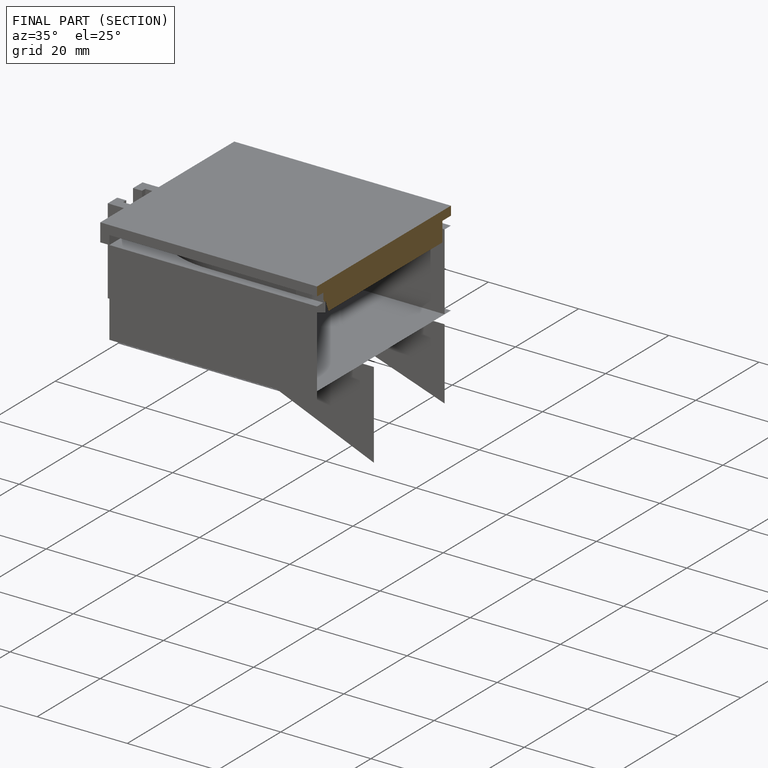
[diagram: finished part — half-section view (interior)]
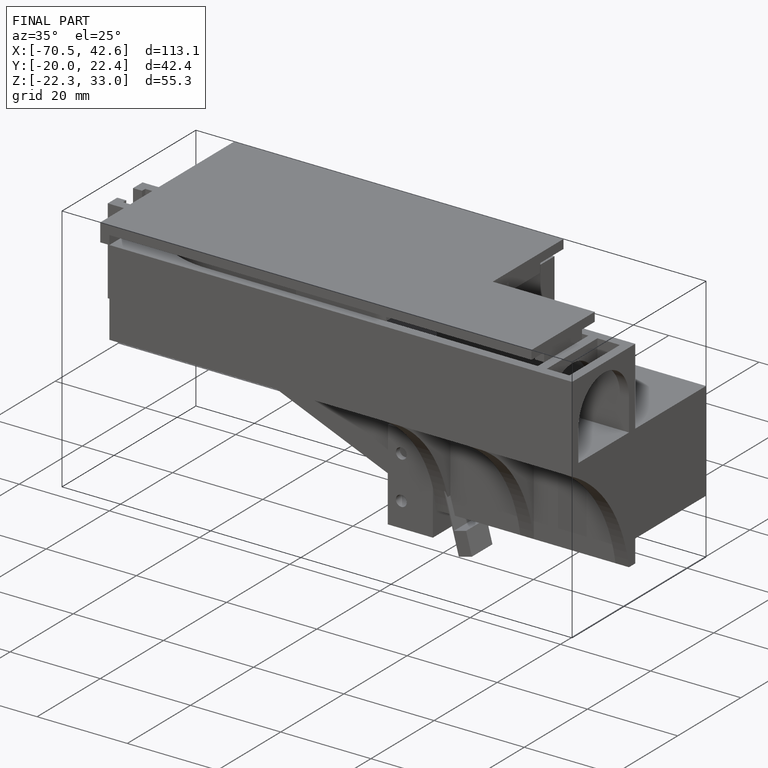
[diagram: finished part — iso view with bounding-box wireframe]
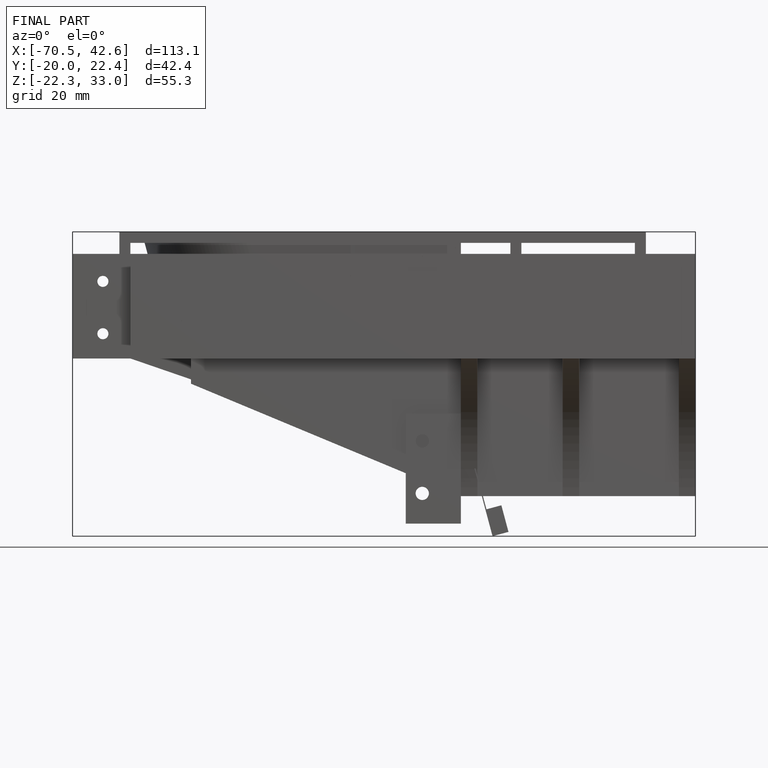
[diagram: finished part — front view with bounding-box wireframe]
